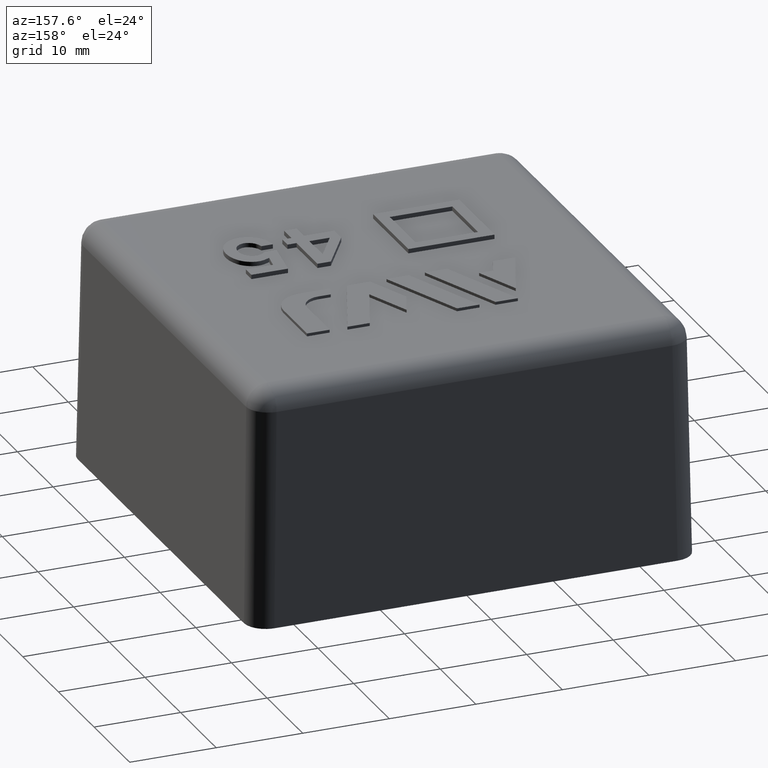
[diagram: clean part render]
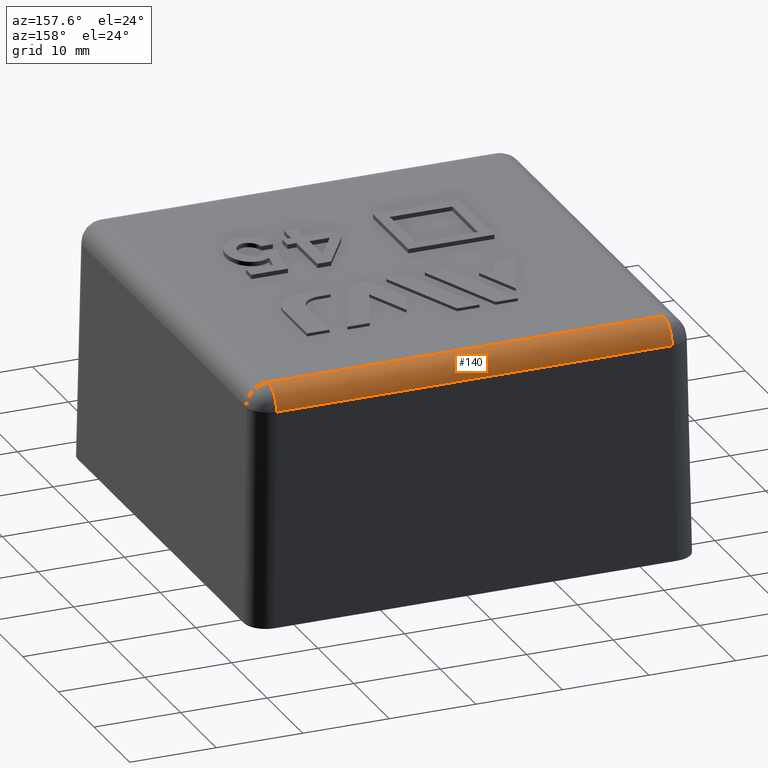
[diagram: same view with one face highlighted and labeled with its STEP entity id]
A machine part, auxiliary view. The second image highlights one B-rep face of the part: STEP entity #140.
In plain terms, the highlighted cylindrical surface (edge-blend (fillet) strip) has radius 2.5 mm, axis along (1, 0, 0).
Its self-contained STEP definition (entity closure, byte-faithful):
#140 = ADVANCED_FACE( '', ( #309 ), #310, .T. );
#309 = FACE_OUTER_BOUND( '', #508, .T. );
#310 = CYLINDRICAL_SURFACE( '', #509, 2.50000000000000 );
#508 = EDGE_LOOP( '', ( #1106, #1107, #1108, #1109 ) );
#509 = AXIS2_PLACEMENT_3D( '', #1110, #1111, #1112 );
#1106 = ORIENTED_EDGE( '', *, *, #1502, .T. );
#1107 = ORIENTED_EDGE( '', *, *, #1337, .F. );
#1108 = ORIENTED_EDGE( '', *, *, #1501, .F. );
#1109 = ORIENTED_EDGE( '', *, *, #1503, .F. );
#1110 = CARTESIAN_POINT( '', ( -25.8000000000000, 22.8632425566848, 25.0000000000000 ) );
#1111 = DIRECTION( '', ( 1.00000000000000, 0.000000000000000, 0.000000000000000 ) );
#1112 = DIRECTION( '', ( 0.000000000000000, 0.000000000000000, 1.00000000000000 ) );
#1337 = EDGE_CURVE( '', #1577, #1579, #1580, .F. );
#1501 = EDGE_CURVE( '', #1851, #1577, #1853, .T. );
#1502 = EDGE_CURVE( '', #1854, #1579, #1855, .T. );
#1503 = EDGE_CURVE( '', #1854, #1851, #1856, .F. );
#1577 = VERTEX_POINT( '', #1976 );
#1579 = VERTEX_POINT( '', #1979 );
#1580 = LINE( '', #1980, #1981 );
#1851 = VERTEX_POINT( '', #2485 );
#1853 = CIRCLE( '', #2487, 2.50000000000000 );
#1854 = VERTEX_POINT( '', #2488 );
#1855 = CIRCLE( '', #2489, 2.50000000000000 );
#1856 = LINE( '', #2490, #2491 );
#1976 = CARTESIAN_POINT( '', ( 22.8632425566848, 22.8632425566848, 27.5000000000000 ) );
#1979 = CARTESIAN_POINT( '', ( -22.8632425566848, 22.8632425566848, 27.5000000000000 ) );
#1980 = CARTESIAN_POINT( '', ( -22.8203664765830, 22.8632425566848, 27.5000000000000 ) );
#1981 = VECTOR( '', #2618, 1000.00000000000 );
#2485 = CARTESIAN_POINT( '', ( 22.8632425566848, 25.3628617945758, 25.0436310160932 ) );
#2487 = AXIS2_PLACEMENT_3D( '', #2748, #2749, #2750 );
#2488 = CARTESIAN_POINT( '', ( -22.8632425566848, 25.3628617945758, 25.0436310160932 ) );
#2489 = AXIS2_PLACEMENT_3D( '', #2751, #2752, #2753 );
#2490 = CARTESIAN_POINT( '', ( 22.8203664765830, 25.3628617945758, 25.0436310160932 ) );
#2491 = VECTOR( '', #2754, 1000.00000000000 );
#2618 = DIRECTION( '', ( 1.00000000000000, 0.000000000000000, 0.000000000000000 ) );
#2748 = CARTESIAN_POINT( '', ( 22.8632425566848, 22.8632425566848, 25.0000000000000 ) );
#2749 = DIRECTION( '', ( 1.00000000000000, 4.84475374490857E-017, -2.77555756156289E-015 ) );
#2750 = DIRECTION( '', ( -2.77555756156289E-015, 0.000000000000000, -1.00000000000000 ) );
#2751 = CARTESIAN_POINT( '', ( -22.8632425566848, 22.8632425566848, 25.0000000000000 ) );
#2752 = DIRECTION( '', ( 1.00000000000000, 0.000000000000000, 0.000000000000000 ) );
#2753 = DIRECTION( '', ( 0.000000000000000, 0.000000000000000, -1.00000000000000 ) );
#2754 = DIRECTION( '', ( -1.00000000000000, 0.000000000000000, 0.000000000000000 ) );